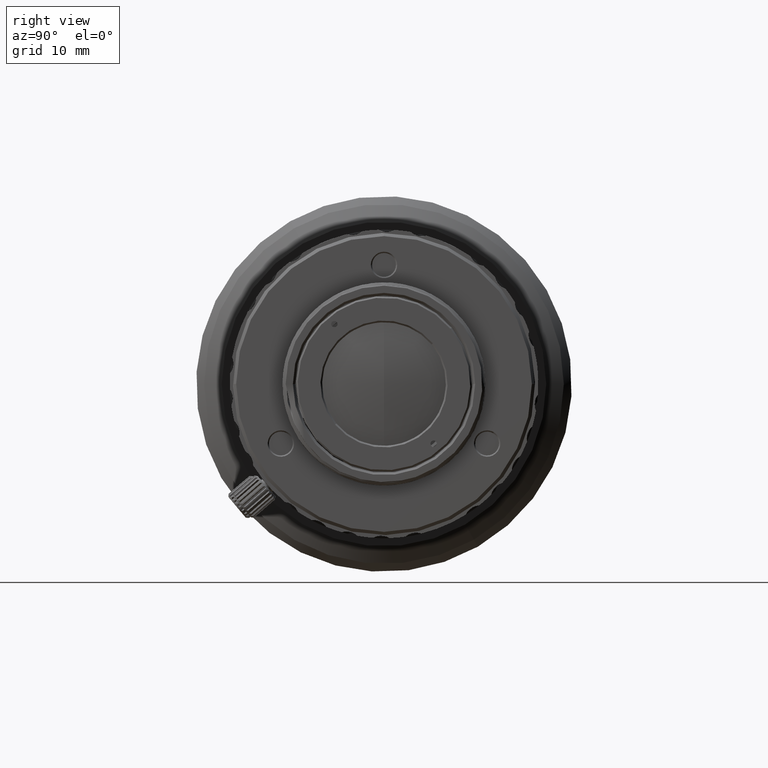
[diagram: clean part render]
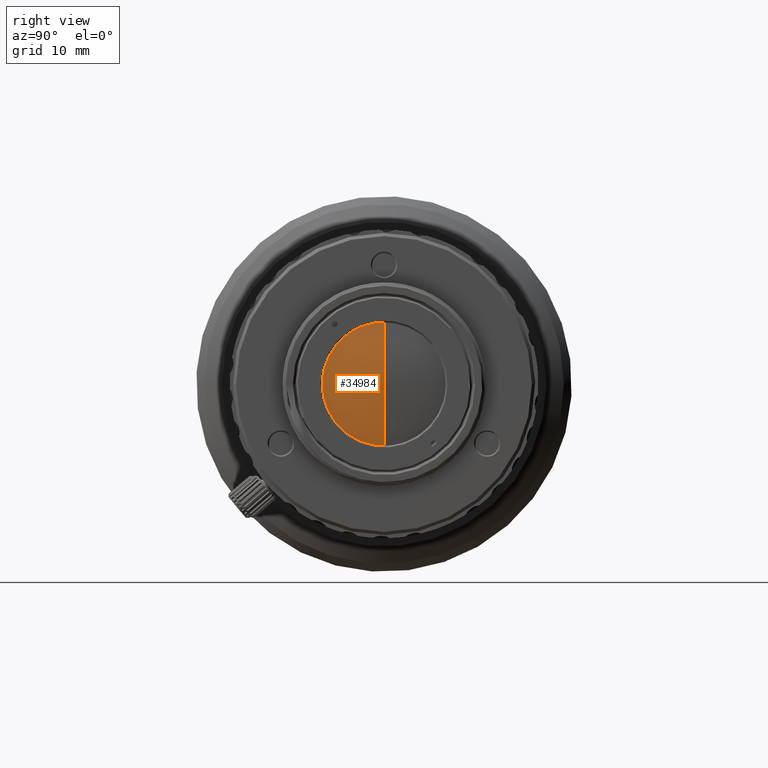
[diagram: same view with one face highlighted and labeled with its STEP entity id]
A machine part, right view. The second image highlights one B-rep face of the part: STEP entity #34984.
In plain terms, the highlighted spherical surface has radius 43.6526 mm.
Its self-contained STEP definition (entity closure, byte-faithful):
#222 = DIRECTION ( 'NONE',  ( 1.000000000000000000, 0.000000000000000000, 0.000000000000000000 ) ) ;
#1217 = CIRCLE ( 'NONE', #45950, 43.65259999999999962 ) ;
#2622 = CARTESIAN_POINT ( 'NONE',  ( 5.447539588305479796, 0.000000000000000000, 2.722205121666999688E-14 ) ) ;
#3986 = DIRECTION ( 'NONE',  ( 0.000000000000000000, 0.000000000000000000, 1.000000000000000000 ) ) ;
#4535 = CARTESIAN_POINT ( 'NONE',  ( 5.447539588305479796, 0.000000000000000000, -7.750000000000000000 ) ) ;
#5945 = DIRECTION ( 'NONE',  ( 0.000000000000000000, 1.000000000000000000, 0.000000000000000000 ) ) ;
#8329 = CARTESIAN_POINT ( 'NONE',  ( 5.447539588305479796, 0.000000000000000000, 7.750000000000000000 ) ) ;
#8462 = VERTEX_POINT ( 'NONE', #54594 ) ;
#9850 = AXIS2_PLACEMENT_3D ( 'NONE', #2622, #13103, #45934 ) ;
#10218 = CIRCLE ( 'NONE', #44810, 7.750000000000000000 ) ;
#11665 = ORIENTED_EDGE ( 'NONE', *, *, #28989, .F. ) ;
#13103 = DIRECTION ( 'NONE',  ( -1.000000000000000000, 0.000000000000000000, 0.000000000000000000 ) ) ;
#13552 = DIRECTION ( 'NONE',  ( -1.000000000000000000, 0.000000000000000000, 0.000000000000000000 ) ) ;
#13646 = EDGE_CURVE ( 'NONE', #45250, #8462, #52588, .T. ) ;
#13675 = VERTEX_POINT ( 'NONE', #8329 ) ;
#15511 = DIRECTION ( 'NONE',  ( 0.000000000000000000, 0.000000000000000000, -1.000000000000000000 ) ) ;
#15983 = ORIENTED_EDGE ( 'NONE', *, *, #22997, .F. ) ;
#19977 = CARTESIAN_POINT ( 'NONE',  ( -37.51159199928600430, 0.000000000000000000, 2.572346234934999722E-14 ) ) ;
#21256 = EDGE_LOOP ( 'NONE', ( #38927, #11665, #15983 ) ) ;
#22997 = EDGE_CURVE ( 'NONE', #8462, #13675, #10218, .T. ) ;
#28989 = EDGE_CURVE ( 'NONE', #13675, #45250, #1217, .T. ) ;
#34984 = ADVANCED_FACE ( 'NONE', ( #59139 ), #39382, .T. ) ;
#38927 = ORIENTED_EDGE ( 'NONE', *, *, #13646, .F. ) ;
#39382 = SPHERICAL_SURFACE ( 'NONE', #62460, 43.65259999999999962 ) ;
#44810 = AXIS2_PLACEMENT_3D ( 'NONE', #56250, #13552, #3986 ) ;
#45250 = VERTEX_POINT ( 'NONE', #4535 ) ;
#45934 = DIRECTION ( 'NONE',  ( 0.000000000000000000, 0.000000000000000000, 1.000000000000000000 ) ) ;
#45950 = AXIS2_PLACEMENT_3D ( 'NONE', #58488, #58793, #222 ) ;
#52588 = CIRCLE ( 'NONE', #9850, 7.750000000000000000 ) ;
#54594 = CARTESIAN_POINT ( 'NONE',  ( 5.447539588305479796, -5.959852519989380149, -4.954054696909990341 ) ) ;
#56250 = CARTESIAN_POINT ( 'NONE',  ( 5.447539588305479796, 0.000000000000000000, 2.722205121666999688E-14 ) ) ;
#58488 = CARTESIAN_POINT ( 'NONE',  ( -37.51159199928600430, 0.000000000000000000, 2.572346234934999722E-14 ) ) ;
#58793 = DIRECTION ( 'NONE',  ( 0.000000000000000000, 1.000000000000000000, 0.000000000000000000 ) ) ;
#59139 = FACE_OUTER_BOUND ( 'NONE', #21256, .T. ) ;
#62460 = AXIS2_PLACEMENT_3D ( 'NONE', #19977, #5945, #15511 ) ;